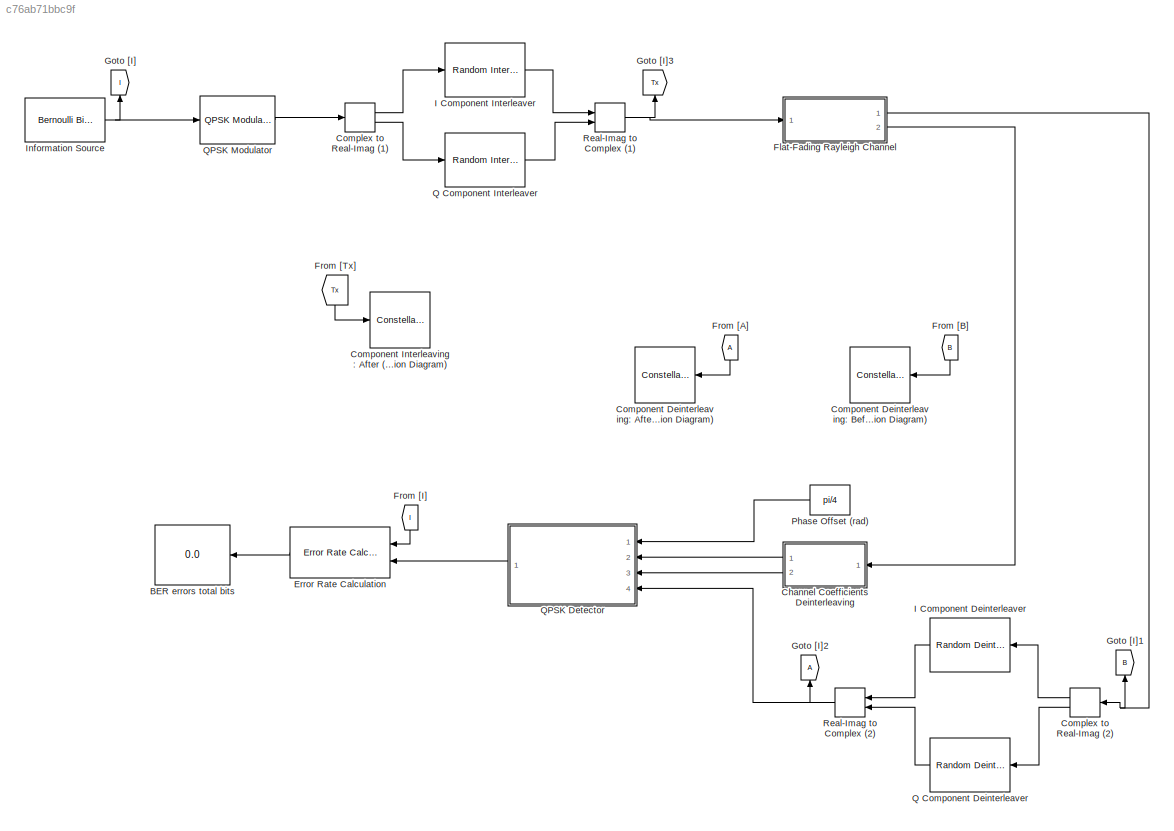
MODEL slx_c76ab71bbc9f
KIND model
CONFIG AbsTol = auto
CONFIG FixedStep = auto
CONFIG MaxStep = auto
CONFIG MinStep = auto
CONFIG RelTol = 1e-3
CONFIG SampleTimeConstraint = Unconstrained
CONFIG Solver = ode45
CONFIG SolverMode = Auto
CONFIG SolverName = ode45
CONFIG StartTime = 0.0
CONFIG StopTime = Inf
BLOCK [Display] BER errors total bits
  Decimation = 1
  Format = short_e
  Ports = [1]
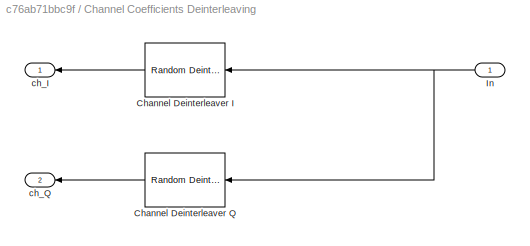
BLOCK [SubSystem] Channel Coefficients Deinterleaving
  Ports = [1, 2]
  RequestExecContextInheritance = off
BLOCK [Reference] Channel Coefficients Deinterleaving/Channel Deinterleaver I  REF=commblkintrlv2/Random
Deinterleaver
  N = 500
  Ports = [1, 1]
  SourceBlock = commblkintrlv2/Random\nDeinterleaver
  SourceType = Random Deinterleaver
  seed = 12345
BLOCK [Reference] Channel Coefficients Deinterleaving/Channel Deinterleaver Q  REF=commblkintrlv2/Random
Deinterleaver
  N = 500
  Ports = [1, 1]
  SourceBlock = commblkintrlv2/Random\nDeinterleaver
  SourceType = Random Deinterleaver
  seed = 54321
BLOCK [Inport] Channel Coefficients Deinterleaving/In
  IconDisplay = Port number
BLOCK [Outport] Channel Coefficients Deinterleaving/ch_I
  IconDisplay = Port number
BLOCK [Outport] Channel Coefficients Deinterleaving/ch_Q
  IconDisplay = Port number
  Port = 2
BLOCK [ComplexToRealImag] Complex to Real-Imag (1)
  Ports = [1, 2]
BLOCK [ComplexToRealImag] Complex to Real-Imag (2)
  Ports = [1, 2]
BLOCK [ConstellationDiagram] Component Deinterleaving: After (Constellation Diagram)
  Ports = [1]
  ScopeSpecificationString = comm.scopes.ConstellationDiagramBlockCfg('CurrentConfiguration', extmgr.ConfigurationSet(extmgr.Configuration('Core','General UI',true),extmgr.Configuration('Core','Source UI',true),extmgr.Configuration('Sources','WiredSimulink',true),extmgr.Configuration('Visuals','Constellation',true,'AxesProperties',struct('Color',[0 0 0],'XColor',[0.686274509803922 0.686274509803922 0.686274509803922],'YColor'...<+965ch>
BLOCK [ConstellationDiagram] Component Deinterleaving: Before (Constellation Diagram)
  Ports = [1]
  ScopeSpecificationString = comm.scopes.ConstellationDiagramBlockCfg('CurrentConfiguration', extmgr.ConfigurationSet(extmgr.Configuration('Core','General UI',true),extmgr.Configuration('Core','Source UI',true),extmgr.Configuration('Sources','WiredSimulink',true),extmgr.Configuration('Visuals','Constellation',true,'AxesProperties',struct('Color',[0 0 0],'XColor',[0.686274509803922 0.686274509803922 0.686274509803922],'YColor'...<+963ch>
BLOCK [ConstellationDiagram] Component Interleaving: After (Constellation Diagram)
  Ports = [1]
  ScopeSpecificationString = comm.scopes.ConstellationDiagramBlockCfg('CurrentConfiguration', extmgr.ConfigurationSet(extmgr.Configuration('Core','General UI',true),extmgr.Configuration('Core','Source UI',true),extmgr.Configuration('Sources','WiredSimulink',true),extmgr.Configuration('Visuals','Constellation',true,'AxesProperties',struct('Color',[0 0 0],'XColor',[0.686274509803922 0.686274509803922 0.686274509803922],'YColor'...<+965ch>
BLOCK [Reference] Error Rate Calculation  REF=commsink2/Error Rate
Calculation
  N = 0
  PMode = Port
  Ports = [2, 1]
  RsMode2 = off
  SourceBlock = commsink2/Error Rate\nCalculation
  SourceType = Error Rate Calculation
  WsName = ErrorVec
  cp_mode = Entire frame
  maxBits = 1e6
  numErr = 100
  st_delay = 0
  stop = off
  subframe = []
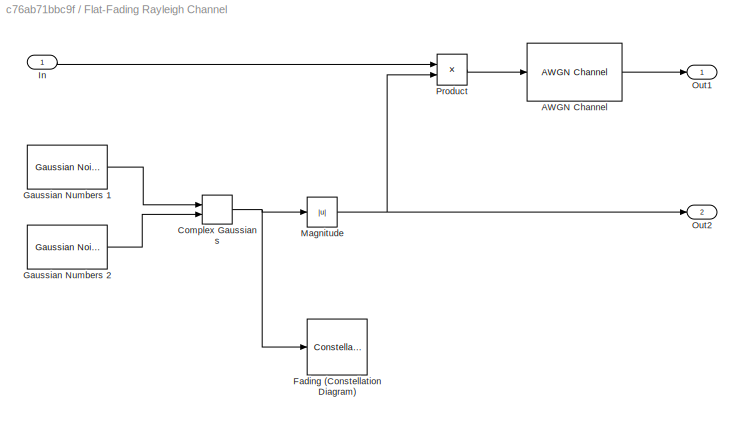
BLOCK [SubSystem] Flat-Fading Rayleigh Channel
  Ports = [1, 2]
  RequestExecContextInheritance = off
BLOCK [Reference] Flat-Fading Rayleigh Channel/AWGN Channel  REF=commchan3/AWGN
Channel
  EbNodB = 10
  EsNodB = 10
  InputProcessing = Columns as channels (frame based)
  Ports = [1, 1]
  Ps = 1
  SNRdB = 23
  SourceBlock = commchan3/AWGN\nChannel
  SourceType = AWGN Channel
  Tsym = 1
  UserDataPersistent = on
  bitsPerSym = 1
  noiseMode = Signal to noise ratio  (SNR)
  seed = 67
  variance = 1
BLOCK [RealImagToComplex] Flat-Fading Rayleigh Channel/Complex Gaussians
  Ports = [2, 1]
BLOCK [ConstellationDiagram] Flat-Fading Rayleigh Channel/Fading (Constellation Diagram)
  Ports = [1]
  ScopeSpecificationString = comm.scopes.ConstellationDiagramBlockCfg('CurrentConfiguration', extmgr.ConfigurationSet(extmgr.Configuration('Core','General UI',true),extmgr.Configuration('Core','Source UI',true),extmgr.Configuration('Sources','WiredSimulink',true),extmgr.Configuration('Visuals','Constellation',true,'AxesProperties',struct('Color',[0 0 0],'XColor',[0.686274509803922 0.686274509803922 0.686274509803922],'YColor'...<+964ch>
BLOCK [Reference] Flat-Fading Rayleigh Channel/Gaussian Numbers 1  REF=commnoisgen2/Gaussian Noise
Generator
  Ports = [0, 1]
  SourceBlock = commnoisgen2/Gaussian Noise\nGenerator
  SourceType = Gaussian Noise Generator
  Ts = .001
  d = 1/2
  frameBased = on
  m = 0
  orient = off
  outDataType = double
  s = 41
  sampPerFrame = 500
BLOCK [Reference] Flat-Fading Rayleigh Channel/Gaussian Numbers 2  REF=commnoisgen2/Gaussian Noise
Generator
  Ports = [0, 1]
  SourceBlock = commnoisgen2/Gaussian Noise\nGenerator
  SourceType = Gaussian Noise Generator
  Ts = .001
  d = 1/2
  frameBased = on
  m = 0
  orient = off
  outDataType = double
  s = 410000001
  sampPerFrame = 500
BLOCK [Inport] Flat-Fading Rayleigh Channel/In
  IconDisplay = Port number
BLOCK [Abs] Flat-Fading Rayleigh Channel/Magnitude
  SaturateOnIntegerOverflow = off
BLOCK [Outport] Flat-Fading Rayleigh Channel/Out1
  IconDisplay = Port number
BLOCK [Outport] Flat-Fading Rayleigh Channel/Out2
  IconDisplay = Port number
  Port = 2
BLOCK [Product] Flat-Fading Rayleigh Channel/Product
  InputSameDT = off
  OutDataTypeStr = Inherit: Inherit via internal rule
  Ports = [2, 1]
  RndMeth = Floor
  SaturateOnIntegerOverflow = off
BLOCK [From] From [A]
BLOCK [From] From [B]
  GotoTag = B
BLOCK [From] From [I]
  GotoTag = I
BLOCK [From] From [Tx]
  GotoTag = Tx
BLOCK [Goto] Goto [I]
  GotoTag = I
BLOCK [Goto] Goto [I]1
  GotoTag = B
BLOCK [Goto] Goto [I]2
BLOCK [Goto] Goto [I]3
  GotoTag = Tx
BLOCK [Reference] I Component Deinterleaver  REF=commblkintrlv2/Random
Deinterleaver
  N = 500
  Ports = [1, 1]
  SourceBlock = commblkintrlv2/Random\nDeinterleaver
  SourceType = Random Deinterleaver
  seed = 12345
BLOCK [Reference] I Component Interleaver  REF=commblkintrlv2/Random
Interleaver
  N = 500
  Ports = [1, 1]
  SourceBlock = commblkintrlv2/Random\nInterleaver
  SourceType = Random Interleaver
  seed = 12345
BLOCK [Reference] Information Source  REF=commrandsrc2/Bernoulli Binary
Generator
  P = 0.5
  Ports = [0, 1]
  SourceBlock = commrandsrc2/Bernoulli Binary\nGenerator
  SourceType = Bernoulli Binary Generator
  Ts = .001
  frameBased = on
  orient = off
  outDataType = double
  sampPerFrame = 1000
  seed = 61
BLOCK [Constant] Phase Offset (rad)
  Value = pi/4
BLOCK [Reference] Q Component Deinterleaver  REF=commblkintrlv2/Random
Deinterleaver
  N = 500
  Ports = [1, 1]
  SourceBlock = commblkintrlv2/Random\nDeinterleaver
  SourceType = Random Deinterleaver
  seed = 54321
BLOCK [Reference] Q Component Interleaver  REF=commblkintrlv2/Random
Interleaver
  N = 500
  Ports = [1, 1]
  SourceBlock = commblkintrlv2/Random\nInterleaver
  SourceType = Random Interleaver
  seed = 54321
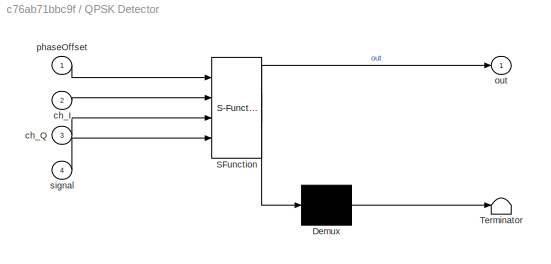
BLOCK [SubSystem] QPSK Detector
  ErrorFcn = Stateflow.Translate.translate
  PermitHierarchicalResolution = ExplicitOnly
  Ports = [4, 1]
  RequestExecContextInheritance = off
  SFBlockType = MATLAB Function
  TreatAsAtomicUnit = on
BLOCK [Demux] QPSK Detector/ Demux 
  Outputs = 1
  Ports = [1, 1]
BLOCK [S-Function] QPSK Detector/ SFunction 
  EnableBusSupport = on
  FunctionName = sf_sfun
  PortCounts = [4 2]
  Ports = [4, 2]
  Tag = Stateflow S-Function rotatedQpskFFRC 2
BLOCK [Terminator] QPSK Detector/ Terminator 
BLOCK [Inport] QPSK Detector/ch_I
  IconDisplay = Port number
  Port = 2
BLOCK [Inport] QPSK Detector/ch_Q
  IconDisplay = Port number
  Port = 3
BLOCK [Outport] QPSK Detector/out
  IconDisplay = Port number
BLOCK [Inport] QPSK Detector/phaseOffset
  IconDisplay = Port number
BLOCK [Inport] QPSK Detector/signal
  IconDisplay = Port number
  Port = 4
BLOCK [Reference] QPSK Modulator  REF=commdigbbndpm3/QPSK
Modulator
Baseband
  Enc = Gray
  InType = Bit
  Ph = pi/4
  Ports = [1, 1]
  SourceBlock = commdigbbndpm3/QPSK\nModulator\nBaseband
  SourceType = QPSK Modulator Baseband
  outDtype = double
  outFracLen = 15
  outFracLenMode = Best precision
  outUDDataType = sfix(16)
  outWordLen = 16
BLOCK [RealImagToComplex] Real-Imag to Complex (1)
  Ports = [2, 1]
BLOCK [RealImagToComplex] Real-Imag to Complex (2)
  Ports = [2, 1]
LINE Channel Coefficients Deinterleaving/Channel Deinterleaver I:1 -> Channel Coefficients Deinterleaving/ch_I:1
LINE Channel Coefficients Deinterleaving/Channel Deinterleaver Q:1 -> Channel Coefficients Deinterleaving/ch_Q:1
NET Channel Coefficients Deinterleaving/In:1 -> Channel Coefficients Deinterleaving/Channel Deinterleaver I:1, Channel Coefficients Deinterleaving/Channel Deinterleaver Q:1
LINE Channel Coefficients Deinterleaving:1 -> QPSK Detector:2
LINE Channel Coefficients Deinterleaving:2 -> QPSK Detector:3
LINE Complex to Real-Imag (1):1 -> I Component Interleaver:1
LINE Complex to Real-Imag (1):2 -> Q Component Interleaver:1
LINE Complex to Real-Imag (2):1 -> I Component Deinterleaver:1
LINE Complex to Real-Imag (2):2 -> Q Component Deinterleaver:1
LINE Error Rate Calculation:1 -> BER errors total bits:1
LINE Flat-Fading Rayleigh Channel/AWGN Channel:1 -> Flat-Fading Rayleigh Channel/Out1:1
NET Flat-Fading Rayleigh Channel/Complex Gaussians:1 -> Flat-Fading Rayleigh Channel/Fading (Constellation Diagram):1, Flat-Fading Rayleigh Channel/Magnitude:1
LINE Flat-Fading Rayleigh Channel/Gaussian Numbers 1:1 -> Flat-Fading Rayleigh Channel/Complex Gaussians:1
LINE Flat-Fading Rayleigh Channel/Gaussian Numbers 2:1 -> Flat-Fading Rayleigh Channel/Complex Gaussians:2
LINE Flat-Fading Rayleigh Channel/In:1 -> Flat-Fading Rayleigh Channel/Product:1
NET Flat-Fading Rayleigh Channel/Magnitude:1 -> Flat-Fading Rayleigh Channel/Out2:1, Flat-Fading Rayleigh Channel/Product:2
LINE Flat-Fading Rayleigh Channel/Product:1 -> Flat-Fading Rayleigh Channel/AWGN Channel:1
NET Flat-Fading Rayleigh Channel:1 -> Complex to Real-Imag (2):1, Goto [I]1:1
LINE Flat-Fading Rayleigh Channel:2 -> Channel Coefficients Deinterleaving:1
LINE From [A]:1 -> Component Deinterleaving: After (Constellation Diagram):1
LINE From [B]:1 -> Component Deinterleaving: Before (Constellation Diagram):1
LINE From [I]:1 -> Error Rate Calculation:1
LINE From [Tx]:1 -> Component Interleaving: After (Constellation Diagram):1
LINE I Component Deinterleaver:1 -> Real-Imag to Complex (2):1
LINE I Component Interleaver:1 -> Real-Imag to Complex (1):1
NET Information Source:1 -> Goto [I]:1, QPSK Modulator:1
LINE Phase Offset (rad):1 -> QPSK Detector:1
LINE Q Component Deinterleaver:1 -> Real-Imag to Complex (2):2
LINE Q Component Interleaver:1 -> Real-Imag to Complex (1):2
LINE QPSK Detector:1 -> Error Rate Calculation:2
LINE QPSK Modulator:1 -> Complex to Real-Imag (1):1
NET Real-Imag to Complex (1):1 -> Flat-Fading Rayleigh Channel:1, Goto [I]3:1
NET Real-Imag to Complex (2):1 -> Goto [I]2:1, QPSK Detector:4
note: NET lines group one-source signal fan-out (src -> all destinations, sorted); 1:1 wires keep LINE
CHART QPSK
Detector states=1 transitions=1
  STATE_LABEL 'eML_blk_kernel()'
  STATE_LABEL 'SCRIPT:\nfunction out = fcn(phaseOffset, ch_I, ch_Q, signal)\n\n% QPSK constellation\nss = [cos(phaseOffset)        + 1i * sin(phaseOffset);\n      cos(phaseOffset+pi/2)   + 1i * sin(phaseOffset+pi/2);\n      cos(phaseOffset+pi)     + 1i * sin(phaseOffset+pi);\n      cos(phaseOffset+3*pi/2) + 1i * sin(phaseOffset+3*pi/2)];\n\nt = zeros(2*length(signal),1);\n\nj = 1;\nfor i = 1 : length(signal)\n    \n    % metr...<+624ch>'
